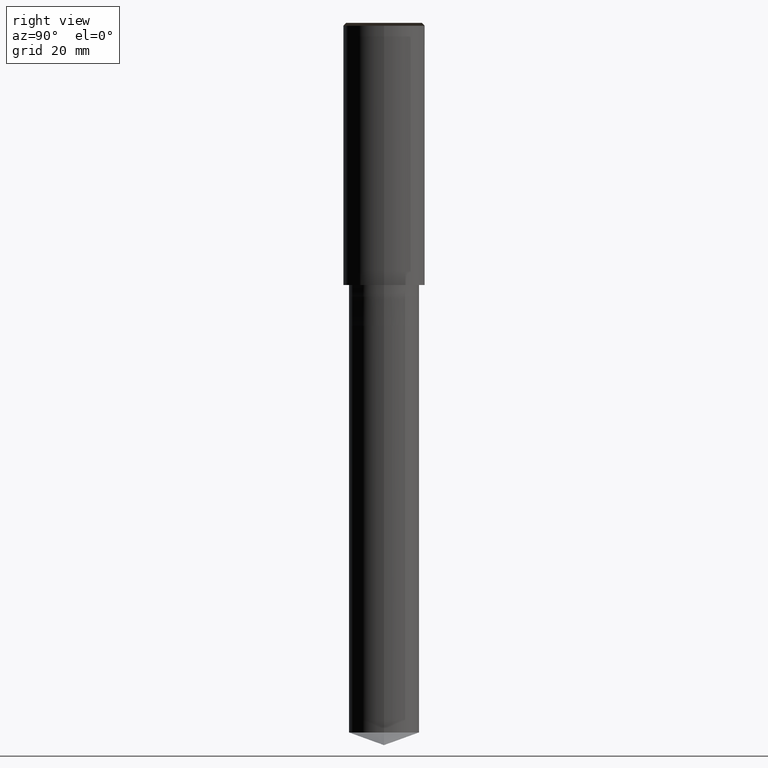
[diagram: clean part render]
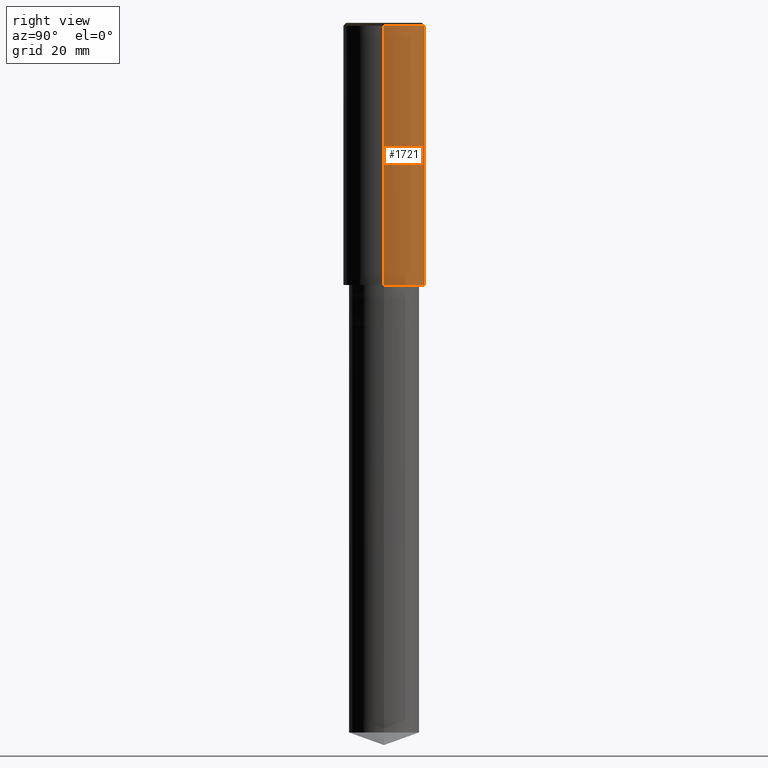
[diagram: same view with one face highlighted and labeled with its STEP entity id]
A machine part, right view. The second image highlights one B-rep face of the part: STEP entity #1721.
In plain terms, the highlighted face is a freeform B-spline surface patch.
Its self-contained STEP definition (entity closure, byte-faithful):
#1482=CARTESIAN_POINT('',(7.0,0.0,0.0));
#1483=CARTESIAN_POINT('',(7.0,7.0,0.0));
#1484=CARTESIAN_POINT('',(0.0,7.0,0.0));
#1485=CARTESIAN_POINT('',(-7.0,7.0,0.0));
#1486=CARTESIAN_POINT('',(-7.0,0.0,0.0));
#1487=CARTESIAN_POINT('',(7.0,0.0,44.5));
#1488=CARTESIAN_POINT('',(7.0,7.0,44.5));
#1489=CARTESIAN_POINT('',(0.0,7.0,44.5));
#1490=CARTESIAN_POINT('',(-7.0,7.0,44.5));
#1491=CARTESIAN_POINT('',(-7.0,0.0,44.5));
#1702=(
BOUNDED_SURFACE()
B_SPLINE_SURFACE(1,2,(
(#1482,#1483,#1484,#1485,#1486),
(#1487,#1488,#1489,#1490,#1491)
), .UNSPECIFIED.,.F.,.F.,.F.)
B_SPLINE_SURFACE_WITH_KNOTS((2,2),(3,2,3),(
0.0,1.0),(
0.0,0.5,1.0), .UNSPECIFIED.)
GEOMETRIC_REPRESENTATION_ITEM()
RATIONAL_B_SPLINE_SURFACE(((1.0,0.707106781187,1.0,0.707106781187,1.0),
(1.0,0.707106781187,1.0,0.707106781187,1.0)
))
REPRESENTATION_ITEM('')
SURFACE()
);
#1703=(
BOUNDED_CURVE()
B_SPLINE_CURVE(2,(#1486,#1485,#1484,#1483,#1482),.UNSPECIFIED.,.F.,.F.)
B_SPLINE_CURVE_WITH_KNOTS((3,2,3),
(0.0,0.5,1.0),.UNSPECIFIED.)
CURVE()
GEOMETRIC_REPRESENTATION_ITEM()
RATIONAL_B_SPLINE_CURVE((1.0,0.707106781187,1.0,0.707106781187,1.0))
REPRESENTATION_ITEM('')
);
#1704=(
BOUNDED_CURVE()
B_SPLINE_CURVE(1,(#1482,#1487),.UNSPECIFIED.,.F.,.F.)
B_SPLINE_CURVE_WITH_KNOTS((2,2),
(0.0,1.0),.UNSPECIFIED.)
CURVE()
GEOMETRIC_REPRESENTATION_ITEM()
RATIONAL_B_SPLINE_CURVE((1.0,1.0))
REPRESENTATION_ITEM('')
);
#1705=(
BOUNDED_CURVE()
B_SPLINE_CURVE(2,(#1487,#1488,#1489,#1490,#1491),.UNSPECIFIED.,.F.,.F.)
B_SPLINE_CURVE_WITH_KNOTS((3,2,3),
(0.0,0.5,1.0),.UNSPECIFIED.)
CURVE()
GEOMETRIC_REPRESENTATION_ITEM()
RATIONAL_B_SPLINE_CURVE((1.0,0.707106781187,1.0,0.707106781187,1.0))
REPRESENTATION_ITEM('')
);
#1706=(
BOUNDED_CURVE()
B_SPLINE_CURVE(1,(#1491,#1486),.UNSPECIFIED.,.F.,.F.)
B_SPLINE_CURVE_WITH_KNOTS((2,2),
(0.0,1.0),.UNSPECIFIED.)
CURVE()
GEOMETRIC_REPRESENTATION_ITEM()
RATIONAL_B_SPLINE_CURVE((1.0,1.0))
REPRESENTATION_ITEM('')
);
#1707=VERTEX_POINT('',#1482);
#1708=VERTEX_POINT('',#1486);
#1709=VERTEX_POINT('',#1487);
#1710=VERTEX_POINT('',#1491);
#1711=EDGE_CURVE('',#1708,#1707,#1703,.T.);
#1712=EDGE_CURVE('',#1707,#1709,#1704,.T.);
#1713=EDGE_CURVE('',#1709,#1710,#1705,.T.);
#1714=EDGE_CURVE('',#1710,#1708,#1706,.T.);
#1715=ORIENTED_EDGE('',*,*,#1711,.T.);
#1716=ORIENTED_EDGE('',*,*,#1712,.T.);
#1717=ORIENTED_EDGE('',*,*,#1713,.T.);
#1718=ORIENTED_EDGE('',*,*,#1714,.T.);
#1719=EDGE_LOOP('',(#1715,#1716,#1717,#1718));
#1720=FACE_OUTER_BOUND('',#1719,.T.);
#1721=ADVANCED_FACE('',(#1720),#1702,.T.);